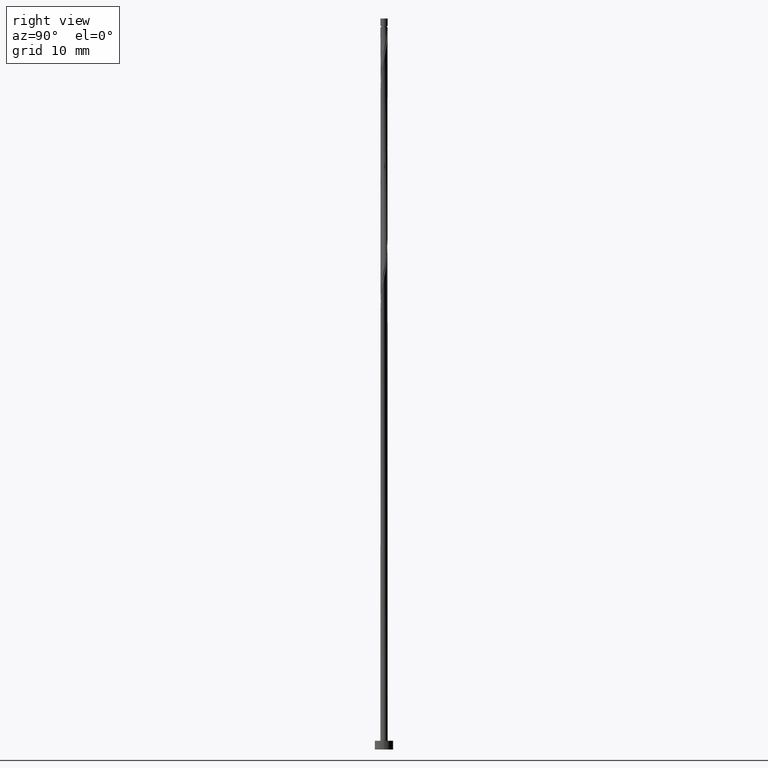
[diagram: clean part render]
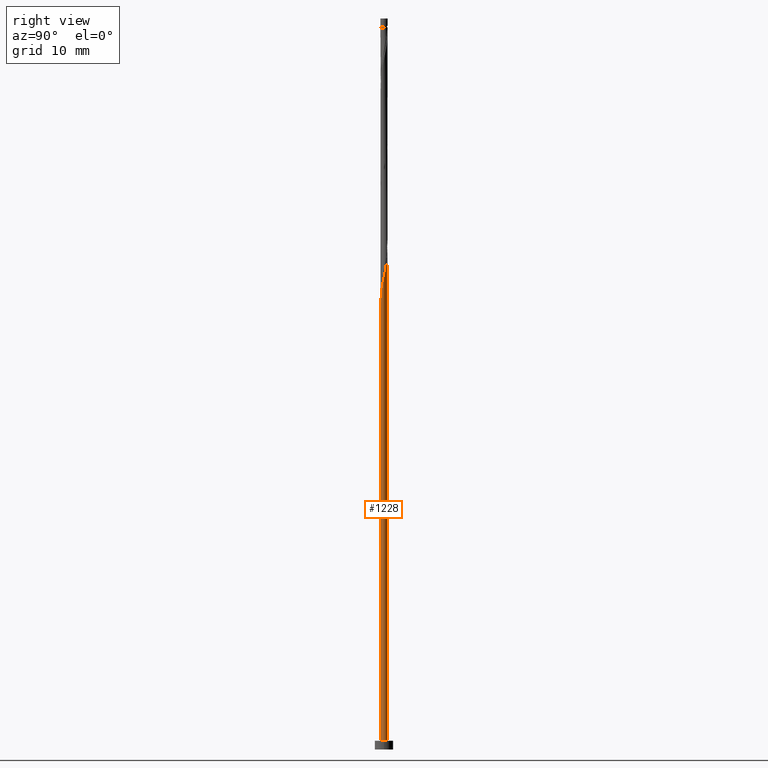
[diagram: same view with one face highlighted and labeled with its STEP entity id]
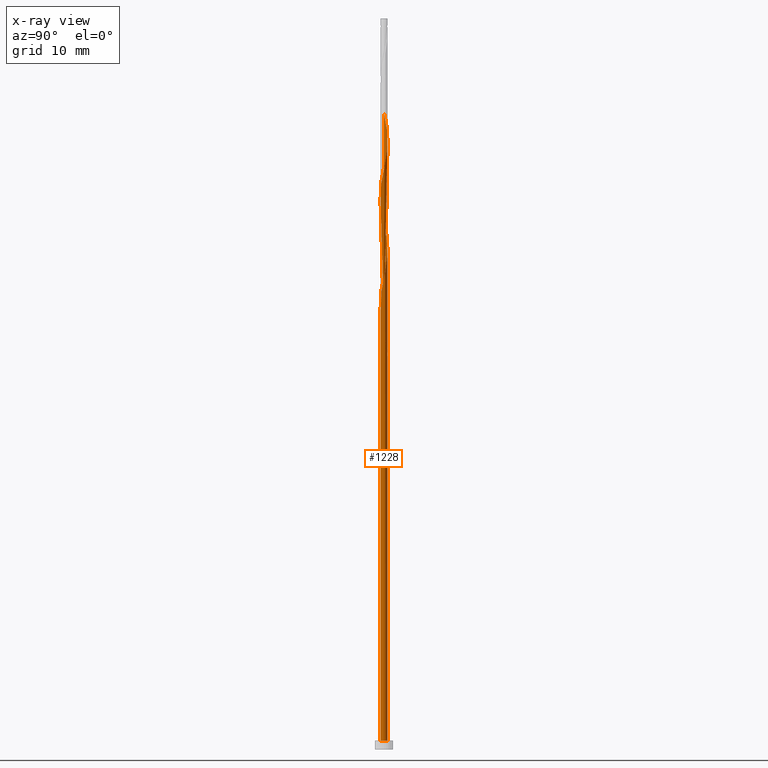
[diagram: x-ray of the same camera — body ghosted, the highlighted face saturated]
A machine part, right view. The second image highlights one B-rep face of the part: STEP entity #1228.
The next image is the same camera in x-ray: the body ghosted, the highlighted face saturated — about 0% of this face is hidden behind the body in this view.
In plain terms, the highlighted cylindrical surface (bore or boss wall) has radius 0.5 mm, axis along (-0, -0, -1).
Its self-contained STEP definition (entity closure, byte-faithful):
#4 = ORIENTED_EDGE ( 'NONE', *, *, #1048, .F. ) ;
#5 = CARTESIAN_POINT ( 'NONE',  ( -0.09949874371066179390, 0.4900000000000008238, 83.80000000000002558 ) ) ;
#17 = VECTOR ( 'NONE', #840, 1000.000000000000000 ) ;
#33 = CARTESIAN_POINT ( 'NONE',  ( -0.07409163498720063024, 0.4944799587697402687, 54.63333333333333286 ) ) ;
#34 = ORIENTED_EDGE ( 'NONE', *, *, #532, .T. ) ;
#35 = CARTESIAN_POINT ( 'NONE',  ( -0.5000000000000000000, 0.000000000000000000, 100.0000000000000000 ) ) ;
#37 = CARTESIAN_POINT ( 'NONE',  ( -0.5000000000000007772, 0.08152718591022869998, 56.68530303938106840 ) ) ;
#40 = EDGE_CURVE ( 'NONE', #66, #515, #1101, .T. ) ;
#57 = CARTESIAN_POINT ( 'NONE',  ( 0.000000000000000000, 0.000000000000000000, 1.199999999999999956 ) ) ;
#58 = CARTESIAN_POINT ( 'NONE',  ( 0.4741018197097065512, -0.1588315603019302691, 63.79999999999999716 ) ) ;
#66 = VERTEX_POINT ( 'NONE', #978 ) ;
#67 = CARTESIAN_POINT ( 'NONE',  ( 0.07409163498720100494, 0.4944799587697403798, 67.96666666666666856 ) ) ;
#74 = DIRECTION ( 'NONE',  ( 1.000000000000000000, 0.000000000000000000, 0.000000000000000000 ) ) ;
#75 = CARTESIAN_POINT ( 'NONE',  ( 0.3362772466861005394, -0.3803819322636883271, 77.54999999999999716 ) ) ;
#80 = CARTESIAN_POINT ( 'NONE',  ( 0.4652780234504774182, 0.1830747412780303895, 80.46666666666668277 ) ) ;
#81 = CARTESIAN_POINT ( 'NONE',  ( 0.000000000000000000, 0.000000000000000000, 1.199999999999999956 ) ) ;
#88 = CARTESIAN_POINT ( 'NONE',  ( -0.4460955302404527867, 0.2424285027197316256, 70.88333333333332575 ) ) ;
#95 = CARTESIAN_POINT ( 'NONE',  ( 0.1612817931379155190, 0.4814156044766936260, 82.55000000000001137 ) ) ;
#125 = CARTESIAN_POINT ( 'NONE',  ( 0.01309852316351392196, 0.5075443130627870225, 54.21666666666666146 ) ) ;
#133 = AXIS2_PLACEMENT_3D ( 'NONE', #81, #504, #1343 ) ;
#140 = EDGE_CURVE ( 'NONE', #926, #316, #469, .T. ) ;
#158 = VERTEX_POINT ( 'NONE', #1294 ) ;
#162 = CARTESIAN_POINT ( 'NONE',  ( 0.1858989642578097734, -0.4724556869372145695, 61.71666666666666146 ) ) ;
#170 = CARTESIAN_POINT ( 'NONE',  ( -0.4652780234504773071, -0.1830747412780305006, 72.96666666666665435 ) ) ;
#178 = CARTESIAN_POINT ( 'NONE',  ( 0.09949874371066182166, -0.4900000000000008238, 76.30000000000002558 ) ) ;
#184 = CARTESIAN_POINT ( 'NONE',  ( 0.3746030759990447989, 0.3311684396980708045, 81.29999999999999716 ) ) ;
#190 = CARTESIAN_POINT ( 'NONE',  ( 0.1612817931379155190, 0.4814156044766936260, 67.54999999999999716 ) ) ;
#195 = LINE ( 'NONE', #696, #17 ) ;
#196 = CARTESIAN_POINT ( 'NONE',  ( -0.5000000000000007772, -9.803696796398973244E-17, 87.07223060051012453 ) ) ;
#202 = CARTESIAN_POINT ( 'NONE',  ( -0.4741018197097065512, 0.1588315603019300748, 86.29999999999999716 ) ) ;
#214 = CARTESIAN_POINT ( 'NONE',  ( 0.07409163498720100494, 0.4944799587697403798, 82.96666666666666856 ) ) ;
#263 = CARTESIAN_POINT ( 'NONE',  ( 0.1858989642578097734, -0.4724556869372145695, 76.71666666666665435 ) ) ;
#272 = CARTESIAN_POINT ( 'NONE',  ( -0.3911863884632766908, 0.3114052174917099070, 70.46666666666668277 ) ) ;
#279 = CARTESIAN_POINT ( 'NONE',  ( 0.3362772466861005394, -0.3803819322636883271, 62.55000000000001137 ) ) ;
#285 = EDGE_CURVE ( 'NONE', #926, #1200, #888, .T. ) ;
#286 = CARTESIAN_POINT ( 'NONE',  ( 0.4975590398240160028, 0.1010336722130053960, 80.04999999999998295 ) ) ;
#292 = CARTESIAN_POINT ( 'NONE',  ( -0.1858989642578099122, 0.4724556869372144030, 69.21666666666666856 ) ) ;
#316 = VERTEX_POINT ( 'NONE', #1062 ) ;
#337 = CARTESIAN_POINT ( 'NONE',  ( -0.3162091449211504313, 0.3972210690530858512, 55.88333333333333286 ) ) ;
#341 = ORIENTED_EDGE ( 'NONE', *, *, #140, .T. ) ;
#362 = CARTESIAN_POINT ( 'NONE',  ( -0.09949874371066179390, 0.4900000000000008793, 53.79999999999999716 ) ) ;
#366 = CARTESIAN_POINT ( 'NONE',  ( -0.4975590398240158918, 0.1010336722130055070, 57.55000000000001137 ) ) ;
#368 = CARTESIAN_POINT ( 'NONE',  ( 0.01309852316351374675, -0.5075443130627872446, 75.88333333333333997 ) ) ;
#377 = CARTESIAN_POINT ( 'NONE',  ( 0.3746030759990447989, 0.3311684396980708045, 66.29999999999998295 ) ) ;
#389 = CARTESIAN_POINT ( 'NONE',  ( -0.1612817931379152137, -0.4814156044766937370, 60.04999999999999716 ) ) ;
#397 = CARTESIAN_POINT ( 'NONE',  ( 0.4998335745014880205, 0.01289952716443851580, 79.63333333333333997 ) ) ;
#409 = CARTESIAN_POINT ( 'NONE',  ( -0.1858989642578099122, 0.4724556869372144030, 84.21666666666665435 ) ) ;
#416 = CARTESIAN_POINT ( 'NONE',  ( 0.5000000000000000000, 0.000000000000000000, 1.199999999999999956 ) ) ;
#425 = CIRCLE ( 'NONE', #950, 0.5000000000000000000 ) ;
#441 = VERTEX_POINT ( 'NONE', #416 ) ;
#461 = CARTESIAN_POINT ( 'NONE',  ( -0.4652780234504771961, 0.1830747412780305838, 57.13333333333332575 ) ) ;
#469 = LINE ( 'NONE', #35, #1037 ) ;
#470 = CARTESIAN_POINT ( 'NONE',  ( -0.4460955302404527867, 0.2424285027197316256, 55.88333333333333997 ) ) ;
#478 = CARTESIAN_POINT ( 'NONE',  ( -0.5000000000000007772, 5.434049081432574150E-16, 57.07223060051013164 ) ) ;
#484 = CARTESIAN_POINT ( 'NONE',  ( -0.2387454690295328918, -0.4393183367648896831, 59.63333333333333286 ) ) ;
#492 = CARTESIAN_POINT ( 'NONE',  ( 0.2610881054719552119, -0.4264188096004513095, 77.13333333333329733 ) ) ;
#498 = CARTESIAN_POINT ( 'NONE',  ( 0.3911863884632766908, -0.3114052174917099070, 77.96666666666665435 ) ) ;
#503 = CARTESIAN_POINT ( 'NONE',  ( 0.2610881054719552119, -0.4264188096004513095, 62.13333333333333997 ) ) ;
#504 = DIRECTION ( 'NONE',  ( 0.000000000000000000, 0.000000000000000000, 1.000000000000000000 ) ) ;
#509 = CARTESIAN_POINT ( 'NONE',  ( -0.4329970070769388890, -0.2651158103430555912, 73.38333333333331154 ) ) ;
#515 = VERTEX_POINT ( 'NONE', #1026 ) ;
#517 = CARTESIAN_POINT ( 'NONE',  ( -0.5000000000000007772, -9.803696796398973244E-17, 87.07223060051012453 ) ) ;
#530 = ORIENTED_EDGE ( 'NONE', *, *, #285, .F. ) ;
#532 = EDGE_CURVE ( 'NONE', #441, #316, #1193, .T. ) ;
#545 = ORIENTED_EDGE ( 'NONE', *, *, #140, .F. ) ;
#549 = CARTESIAN_POINT ( 'NONE',  ( 0.09949874371066202983, 0.4900000000000007683, 53.79999999999999716 ) ) ;
#578 = CARTESIAN_POINT ( 'NONE',  ( -0.1612817931379151581, 0.4814156044766936260, 55.04999999999999716 ) ) ;
#591 = CARTESIAN_POINT ( 'NONE',  ( -0.2387454690295328918, -0.4393183367648896831, 74.63333333333331154 ) ) ;
#598 = CARTESIAN_POINT ( 'NONE',  ( -0.3746030759990447989, -0.3311684396980705825, 73.80000000000001137 ) ) ;
#606 = CARTESIAN_POINT ( 'NONE',  ( -0.2610881054719552674, 0.4264188096004513095, 69.63333333333335418 ) ) ;
#612 = ORIENTED_EDGE ( 'NONE', *, *, #778, .T. ) ;
#613 = CARTESIAN_POINT ( 'NONE',  ( -0.01309852316351389420, 0.5075443130627871335, 68.38333333333332575 ) ) ;
#616 = EDGE_CURVE ( 'NONE', #158, #515, #650, .T. ) ;
#637 = CARTESIAN_POINT ( 'NONE',  ( -0.2610881054719552674, 0.4264188096004513095, 84.63333333333332575 ) ) ;
#649 = CARTESIAN_POINT ( 'NONE',  ( 0.000000000000000000, 0.000000000000000000, 53.80000000000000426 ) ) ;
#650 =( BOUNDED_CURVE ( )  B_SPLINE_CURVE ( 2, ( #1314, #668, #1076, #366, #461, #992, #659, #337, #1103, #578, #33, #125, #549 ),
 .UNSPECIFIED., .F., .T. ) 
 B_SPLINE_CURVE_WITH_KNOTS ( ( 3, 2, 2, 2, 2, 2, 3 ),
 ( 0.9295248053855293957, 0.9305555555555555802, 0.9444444444444444198, 0.9583333333333333703, 0.9722222222222222099, 0.9861111111111111605, 1.000000000000000000 ),
 .UNSPECIFIED. ) 
 CURVE ( )  GEOMETRIC_REPRESENTATION_ITEM ( )  RATIONAL_B_SPLINE_CURVE ( ( 0.9071930855141279171, 0.9080659294509753066, 0.9090909090909150558, 0.8952797754656496299, 0.9090909090909150558, 0.8952797754656496299, 0.9090909090909150558, 0.8952797754656496299, 0.9090909090909150558, 0.8952797754656496299, 0.9090909090909150558, 0.8952797754656496299, 0.9090909090909150558 ) ) 
 REPRESENTATION_ITEM ( '' )  );
#659 = CARTESIAN_POINT ( 'NONE',  ( -0.3746030759990446324, 0.3311684396980706935, 56.29999999999999716 ) ) ;
#668 = CARTESIAN_POINT ( 'NONE',  ( -0.5000000000000005551, 0.006450837166012286447, 57.99715376295075231 ) ) ;
#689 = CARTESIAN_POINT ( 'NONE',  ( -0.4741018197097065512, 0.1588315603019300748, 71.30000000000002558 ) ) ;
#695 = CARTESIAN_POINT ( 'NONE',  ( -0.4998335745014880205, -0.01289952716443847763, 72.13333333333333997 ) ) ;
#696 = CARTESIAN_POINT ( 'NONE',  ( -0.5000000000000000000, 0.000000000000000000, 100.0000000000000000 ) ) ;
#703 = CARTESIAN_POINT ( 'NONE',  ( -0.4329970070769388890, -0.2651158103430555912, 58.38333333333332575 ) ) ;
#709 = CARTESIAN_POINT ( 'NONE',  ( 0.4329970070769391111, 0.2651158103430553137, 80.88333333333332575 ) ) ;
#715 = CARTESIAN_POINT ( 'NONE',  ( 0.4975590398240160028, 0.1010336722130053960, 65.04999999999999716 ) ) ;
#737 = CARTESIAN_POINT ( 'NONE',  ( -0.3362772466861007059, 0.3803819322636883271, 85.04999999999998295 ) ) ;
#755 = CARTESIAN_POINT ( 'NONE',  ( -0.1858989642578099122, 0.4724556869372144030, 54.21666666666667567 ) ) ;
#765 = CARTESIAN_POINT ( 'NONE',  ( -0.3911863884632766908, 0.3114052174917099070, 55.46666666666667567 ) ) ;
#769 = ORIENTED_EDGE ( 'NONE', *, *, #1165, .F. ) ;
#778 = EDGE_CURVE ( 'NONE', #316, #441, #425, .T. ) ;
#788 = DIRECTION ( 'NONE',  ( 0.000000000000000000, -0.000000000000000000, -1.000000000000000000 ) ) ;
#794 = CARTESIAN_POINT ( 'NONE',  ( 0.4460955302404527867, -0.2424285027197316811, 78.38333333333333997 ) ) ;
#803 = CARTESIAN_POINT ( 'NONE',  ( -0.3162091449211504868, -0.3972210690530860178, 59.21666666666666856 ) ) ;
#811 = CARTESIAN_POINT ( 'NONE',  ( 0.4998335745014880205, 0.01289952716443851580, 64.63333333333333997 ) ) ;
#817 = CARTESIAN_POINT ( 'NONE',  ( 0.3911863884632766908, -0.3114052174917099070, 62.96666666666668277 ) ) ;
#825 = ORIENTED_EDGE ( 'NONE', *, *, #616, .F. ) ;
#832 = EDGE_LOOP ( 'NONE', ( #769, #530, #341, #612, #34, #545, #4, #952, #825 ) ) ;
#840 = DIRECTION ( 'NONE',  ( -0.000000000000000000, -0.000000000000000000, -1.000000000000000000 ) ) ;
#841 = CARTESIAN_POINT ( 'NONE',  ( -0.5000000000000011102, 0.08152718591022742323, 86.68530303938103998 ) ) ;
#888 =( BOUNDED_CURVE ( )  B_SPLINE_CURVE ( 2, ( #478, #891, #1113, #1024, #1231, #703, #1035, #803, #484, #389, #1323, #1331, #910, #162, #503, #279, #817, #1008, #58, #900, #811, #715, #1213, #1237, #377, #1342, #1225, #190, #67, #613, #1219, #292, #606, #1128, #272, #88, #689, #1140, #695, #1120, #170, #509, #598, #1134, #591, #1017, #931, #368, #178, #263, #492, #75, #498, #794, #916, #1336, #397, #286, #80, #709, #184, #1030, #923, #95, #214, #949, #5, #409, #637, #737, #1269, #1055, #202, #841, #196 ),
 .UNSPECIFIED., .F., .T. ) 
 B_SPLINE_CURVE_WITH_KNOTS ( ( 3, 2, 2, 2, 2, 2, 2, 2, 2, 2, 2, 2, 2, 2, 2, 2, 2, 2, 2, 2, 2, 2, 2, 2, 2, 2, 2, 2, 2, 2, 2, 2, 2, 2, 2, 2, 2, 3 ),
 ( 0.05452480538552907652, 0.05555555555555558023, 0.06944444444444441977, 0.08333333333333337034, 0.09722222222222220989, 0.1111111111111111605, 0.1250000000000000000, 0.1388888888888888395, 0.1527777777777777901, 0.1666666666666666297, 0.1805555555555555802, 0.1944444444444444198, 0.2083333333333333703, 0.2222222222222222099, 0.2361111111111111605, 0.2500000000000000000, 0.2638888888888888395, 0.2777777777777777901, 0.2916666666666666297, 0.3055555555555555802, 0.3194444444444444198, 0.3333333333333333703, 0.3472222222222222099, 0.3611111111111111605, 0.3750000000000000000, 0.3888888888888888395, 0.4027777777777777901, 0.4166666666666666297, 0.4305555555555555802, 0.4444444444444444198, 0.4583333333333333703, 0.4722222222222222099, 0.4861111111111111605, 0.5000000000000000000, 0.5138888888888888395, 0.5277777777777777901, 0.5416666666666667407, 0.5545248053855292847 ),
 .UNSPECIFIED. ) 
 CURVE ( )  GEOMETRIC_REPRESENTATION_ITEM ( )  RATIONAL_B_SPLINE_CURVE ( ( 0.9071930855141276950, 0.9080659294509753066, 0.9090909090909153889, 0.8952797754656498519, 0.9090909090909153889, 0.8952797754656498519, 0.9090909090909153889, 0.8952797754656498519, 0.9090909090909153889, 0.8952797754656498519, 0.9090909090909153889, 0.8952797754656498519, 0.9090909090909153889, 0.8952797754656498519, 0.9090909090909153889, 0.8952797754656498519, 0.9090909090909153889, 0.8952797754656498519, 0.9090909090909153889, 0.8952797754656498519, 0.9090909090909153889, 0.8952797754656498519, 0.9090909090909153889, 0.8952797754656498519, 0.9090909090909153889, 0.8952797754656498519, 0.9090909090909153889, 0.8952797754656498519, 0.9090909090909153889, 0.8952797754656498519, 0.9090909090909153889, 0.8952797754656498519, 0.9090909090909153889, 0.8952797754656498519, 0.9090909090909153889, 0.8952797754656498519, 0.9090909090909153889, 0.8952797754656498519, 0.9090909090909153889, 0.8952797754656498519, 0.9090909090909153889, 0.8952797754656498519, 0.9090909090909153889, 0.8952797754656498519, 0.9090909090909153889, 0.8952797754656498519, 0.9090909090909153889, 0.8952797754656498519, 0.9090909090909153889, 0.8952797754656498519, 0.9090909090909153889, 0.8952797754656498519, 0.9090909090909153889, 0.8952797754656498519, 0.9090909090909153889, 0.8952797754656498519, 0.9090909090909153889, 0.8952797754656498519, 0.9090909090909153889, 0.8952797754656498519, 0.9090909090909153889, 0.8952797754656498519, 0.9090909090909153889, 0.8952797754656498519, 0.9090909090909153889, 0.8952797754656498519, 0.9090909090909153889, 0.8952797754656498519, 0.9090909090909153889, 0.8952797754656498519, 0.9090909090909153889, 0.8952797754656498519, 0.9090909090909153889, 0.8963047551055898232, 0.9071930855141279171 ) ) 
 REPRESENTATION_ITEM ( '' )  );
#891 = CARTESIAN_POINT ( 'NONE',  ( -0.5000000000000007772, -0.006450837166010229932, 57.10284623704924911 ) ) ;
#900 = CARTESIAN_POINT ( 'NONE',  ( 0.5021081091789604267, -0.07523461788412882933, 64.21666666666666856 ) ) ;
#910 = CARTESIAN_POINT ( 'NONE',  ( 0.09949874371066182166, -0.4900000000000008238, 61.29999999999999716 ) ) ;
#916 = CARTESIAN_POINT ( 'NONE',  ( 0.4741018197097065512, -0.1588315603019302691, 78.80000000000001137 ) ) ;
#923 = CARTESIAN_POINT ( 'NONE',  ( 0.2387454690295330029, 0.4393183367648896831, 82.13333333333335418 ) ) ;
#926 = VERTEX_POINT ( 'NONE', #995 ) ;
#931 = CARTESIAN_POINT ( 'NONE',  ( -0.07409163498720072738, -0.4944799587697403798, 75.46666666666666856 ) ) ;
#942 = FACE_OUTER_BOUND ( 'NONE', #832, .T. ) ;
#949 = CARTESIAN_POINT ( 'NONE',  ( -0.01309852316351389420, 0.5075443130627871335, 83.38333333333332575 ) ) ;
#950 = AXIS2_PLACEMENT_3D ( 'NONE', #57, #1126, #74 ) ;
#952 = ORIENTED_EDGE ( 'NONE', *, *, #40, .T. ) ;
#970 = DIRECTION ( 'NONE',  ( -0.000000000000000000, -0.000000000000000000, -1.000000000000000000 ) ) ;
#978 = CARTESIAN_POINT ( 'NONE',  ( -0.09949874371066178003, 0.4900000000000008793, 53.79999999999999716 ) ) ;
#979 = CARTESIAN_POINT ( 'NONE',  ( -0.5000000000000007772, 5.434049081432574150E-16, 57.07223060051013164 ) ) ;
#992 = CARTESIAN_POINT ( 'NONE',  ( -0.4329970070769387780, 0.2651158103430555912, 56.71666666666666856 ) ) ;
#995 = CARTESIAN_POINT ( 'NONE',  ( -0.5000000000000007772, 5.434049081432574150E-16, 57.07223060051013164 ) ) ;
#1008 = CARTESIAN_POINT ( 'NONE',  ( 0.4460955302404527867, -0.2424285027197316811, 63.38333333333333286 ) ) ;
#1017 = CARTESIAN_POINT ( 'NONE',  ( -0.1612817931379152137, -0.4814156044766937370, 75.05000000000001137 ) ) ;
#1024 = CARTESIAN_POINT ( 'NONE',  ( -0.4975590398240160028, -0.1010336722130054932, 57.54999999999999716 ) ) ;
#1026 = CARTESIAN_POINT ( 'NONE',  ( 0.09949874371066201595, 0.4900000000000007683, 53.79999999999999716 ) ) ;
#1030 = CARTESIAN_POINT ( 'NONE',  ( 0.3162091449211505423, 0.3972210690530860178, 81.71666666666665435 ) ) ;
#1035 = CARTESIAN_POINT ( 'NONE',  ( -0.3746030759990447989, -0.3311684396980705825, 58.80000000000001137 ) ) ;
#1037 = VECTOR ( 'NONE', #970, 1000.000000000000000 ) ;
#1048 = EDGE_CURVE ( 'NONE', #66, #926, #1173, .T. ) ;
#1055 = CARTESIAN_POINT ( 'NONE',  ( -0.4460955302404527867, 0.2424285027197316256, 85.88333333333335418 ) ) ;
#1062 = CARTESIAN_POINT ( 'NONE',  ( -0.5000000000000000000, 0.000000000000000000, 1.199999999999999956 ) ) ;
#1076 = CARTESIAN_POINT ( 'NONE',  ( -0.4998335745014880205, 0.01289952716443853141, 57.96666666666667567 ) ) ;
#1077 = DIRECTION ( 'NONE',  ( -1.000000000000000000, 0.000000000000000000, 0.000000000000000000 ) ) ;
#1090 = CARTESIAN_POINT ( 'NONE',  ( -0.2610881054719552674, 0.4264188096004513095, 54.63333333333332575 ) ) ;
#1098 = CARTESIAN_POINT ( 'NONE',  ( -0.3362772466861007059, 0.3803819322636883271, 55.05000000000001137 ) ) ;
#1101 = CIRCLE ( 'NONE', #1253, 0.5000000000000000000 ) ;
#1103 = CARTESIAN_POINT ( 'NONE',  ( -0.2387454690295328086, 0.4393183367648896831, 55.46666666666666856 ) ) ;
#1113 = CARTESIAN_POINT ( 'NONE',  ( -0.4998335745014880205, -0.01289952716443847763, 57.13333333333333997 ) ) ;
#1120 = CARTESIAN_POINT ( 'NONE',  ( -0.4975590398240160028, -0.1010336722130054932, 72.55000000000001137 ) ) ;
#1126 = DIRECTION ( 'NONE',  ( 0.000000000000000000, 0.000000000000000000, 1.000000000000000000 ) ) ;
#1128 = CARTESIAN_POINT ( 'NONE',  ( -0.3362772466861007059, 0.3803819322636883271, 70.04999999999998295 ) ) ;
#1134 = CARTESIAN_POINT ( 'NONE',  ( -0.3162091449211504868, -0.3972210690530860178, 74.21666666666671119 ) ) ;
#1140 = CARTESIAN_POINT ( 'NONE',  ( -0.5021081091789604267, 0.07523461788412853790, 71.71666666666666856 ) ) ;
#1145 = CYLINDRICAL_SURFACE ( 'NONE', #1234, 0.5000000000000000000 ) ;
#1165 = EDGE_CURVE ( 'NONE', #1200, #158, #195, .T. ) ;
#1173 =( BOUNDED_CURVE ( )  B_SPLINE_CURVE ( 2, ( #362, #755, #1090, #1098, #765, #470, #1310, #37, #979 ),
 .UNSPECIFIED., .F., .T. ) 
 B_SPLINE_CURVE_WITH_KNOTS ( ( 3, 2, 2, 2, 3 ),
 ( 0.000000000000000000, 0.01388888888888883955, 0.02777777777777779011, 0.04166666666666662966, 0.05452480538552906958 ),
 .UNSPECIFIED. ) 
 CURVE ( )  GEOMETRIC_REPRESENTATION_ITEM ( )  RATIONAL_B_SPLINE_CURVE ( ( 0.9090909090909153889, 0.8952797754656498519, 0.9090909090909153889, 0.8952797754656498519, 0.9090909090909153889, 0.8952797754656498519, 0.9090909090909153889, 0.8963047551055899342, 0.9071930855141276950 ) ) 
 REPRESENTATION_ITEM ( '' )  );
#1193 = CIRCLE ( 'NONE', #133, 0.5000000000000000000 ) ;
#1200 = VERTEX_POINT ( 'NONE', #517 ) ;
#1213 = CARTESIAN_POINT ( 'NONE',  ( 0.4652780234504774182, 0.1830747412780303895, 65.46666666666666856 ) ) ;
#1219 = CARTESIAN_POINT ( 'NONE',  ( -0.09949874371066179390, 0.4900000000000008238, 68.79999999999996874 ) ) ;
#1225 = CARTESIAN_POINT ( 'NONE',  ( 0.2387454690295330029, 0.4393183367648896831, 67.13333333333333997 ) ) ;
#1228 = ADVANCED_FACE ( 'NONE', ( #942 ), #1145, .T. ) ;
#1231 = CARTESIAN_POINT ( 'NONE',  ( -0.4652780234504773071, -0.1830747412780305006, 57.96666666666666146 ) ) ;
#1234 = AXIS2_PLACEMENT_3D ( 'NONE', #1324, #1251, #1360 ) ;
#1237 = CARTESIAN_POINT ( 'NONE',  ( 0.4329970070769391111, 0.2651158103430553137, 65.88333333333333997 ) ) ;
#1251 = DIRECTION ( 'NONE',  ( -0.000000000000000000, -0.000000000000000000, -1.000000000000000000 ) ) ;
#1253 = AXIS2_PLACEMENT_3D ( 'NONE', #649, #788, #1077 ) ;
#1269 = CARTESIAN_POINT ( 'NONE',  ( -0.3911863884632766908, 0.3114052174917099070, 85.46666666666666856 ) ) ;
#1294 = CARTESIAN_POINT ( 'NONE',  ( -0.5000000000000006661, -4.855164127740446616E-16, 58.02776939948987689 ) ) ;
#1310 = CARTESIAN_POINT ( 'NONE',  ( -0.4741018197097065512, 0.1588315603019300748, 56.30000000000001137 ) ) ;
#1314 = CARTESIAN_POINT ( 'NONE',  ( -0.5000000000000006661, -4.855164127740446616E-16, 58.02776939948987689 ) ) ;
#1323 = CARTESIAN_POINT ( 'NONE',  ( -0.07409163498720072738, -0.4944799587697403798, 60.46666666666666146 ) ) ;
#1324 = CARTESIAN_POINT ( 'NONE',  ( 0.000000000000000000, 0.000000000000000000, 100.0000000000000000 ) ) ;
#1331 = CARTESIAN_POINT ( 'NONE',  ( 0.01309852316351374675, -0.5075443130627872446, 60.88333333333334707 ) ) ;
#1336 = CARTESIAN_POINT ( 'NONE',  ( 0.5021081091789604267, -0.07523461788412882933, 79.21666666666668277 ) ) ;
#1342 = CARTESIAN_POINT ( 'NONE',  ( 0.3162091449211505423, 0.3972210690530860178, 66.71666666666666856 ) ) ;
#1343 = DIRECTION ( 'NONE',  ( 1.000000000000000000, 0.000000000000000000, 0.000000000000000000 ) ) ;
#1360 = DIRECTION ( 'NONE',  ( -1.000000000000000000, 0.000000000000000000, 0.000000000000000000 ) ) ;